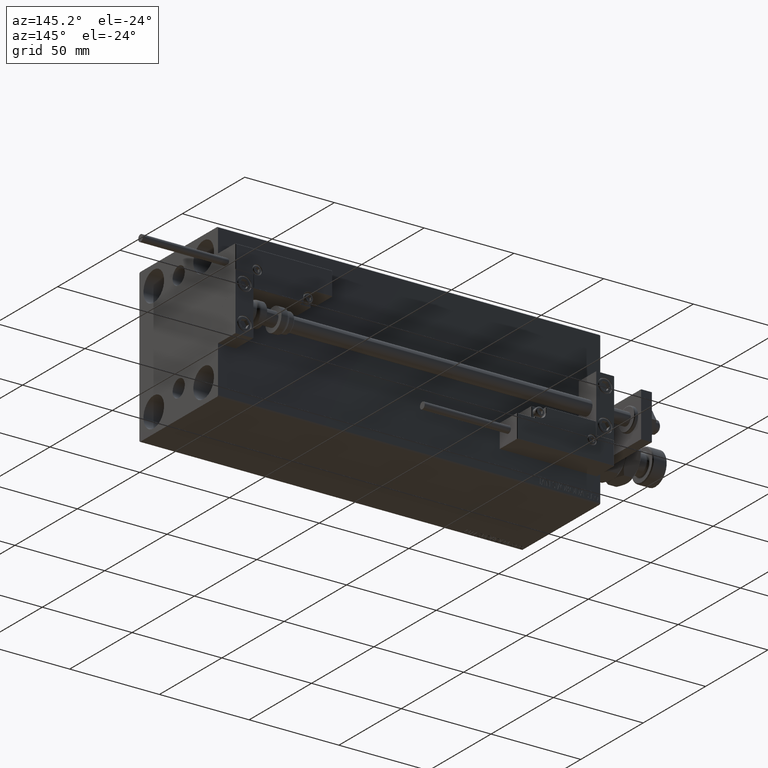
[diagram: clean part render]
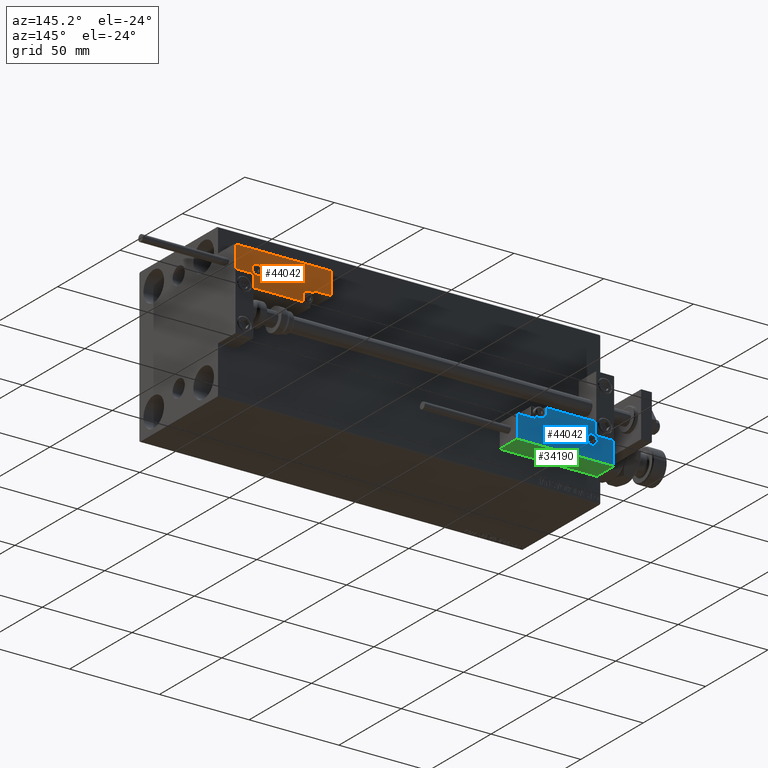
[diagram: same view with three faces highlighted in distinct colors, each labeled with its STEP entity id]
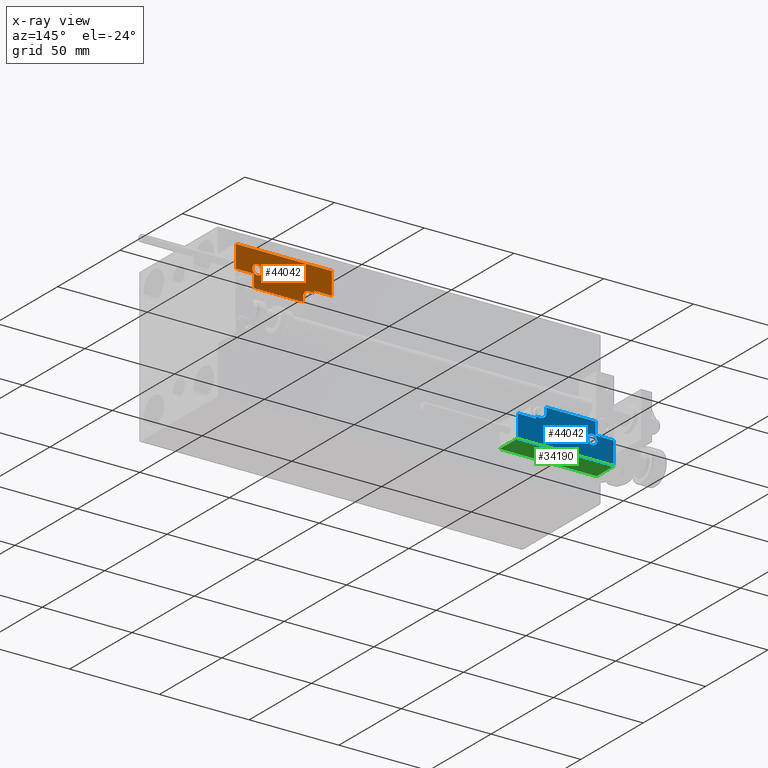
[diagram: x-ray of the same camera — body ghosted, the three highlighted faces saturated]
A machine part, auxiliary view with three faces highlighted in distinct colors.
The next image is the same camera in x-ray (body ghosted, the three faces saturated) — at least one of them is partly hidden behind the body in this view.
Their STEP definitions:

[orange] entity #44042 — the highlighted planar face has unit normal (0, 1, -0).
#146 = CARTESIAN_POINT ( 'NONE',  ( -16.69999999999999218, 3.252606517456513302E-15, 14.00000000000000000 ) ) ;
#300 = LINE ( 'NONE', #48426, #10548 ) ;
#451 = CARTESIAN_POINT ( 'NONE',  ( 16.69999999999999929, 7.000000000000009770, 14.00000000000000000 ) ) ;
#912 = LINE ( 'NONE', #146, #49469 ) ;
#1470 = LINE ( 'NONE', #21082, #26514 ) ;
#1484 = CARTESIAN_POINT ( 'NONE',  ( 16.69999999999999929, 7.300000000000009592, 14.00000000000000000 ) ) ;
#1702 = VECTOR ( 'NONE', #28228, 1000.000000000000000 ) ;
#2166 = DIRECTION ( 'NONE',  ( 1.000000000000000000, 0.000000000000000000, 0.000000000000000000 ) ) ;
#2460 = VECTOR ( 'NONE', #9930, 1000.000000000000000 ) ;
#2654 = CARTESIAN_POINT ( 'NONE',  ( 16.69999999999999929, 6.300000000000003375, 14.00000000000000000 ) ) ;
#2973 = ORIENTED_EDGE ( 'NONE', *, *, #39315, .T. ) ;
#3233 = EDGE_CURVE ( 'NONE', #30541, #9213, #300, .T. ) ;
#4545 = VERTEX_POINT ( 'NONE', #36314 ) ;
#4653 = VECTOR ( 'NONE', #49059, 1000.000000000000000 ) ;
#4824 = ORIENTED_EDGE ( 'NONE', *, *, #31175, .T. ) ;
#5212 = ORIENTED_EDGE ( 'NONE', *, *, #14546, .T. ) ;
#6417 = CARTESIAN_POINT ( 'NONE',  ( -14.79999999999994920, 9.800000000000004263, 14.00000000000000000 ) ) ;
#7172 = CARTESIAN_POINT ( 'NONE',  ( -26.69999999999994600, 7.000000000000005329, 14.00000000000000000 ) ) ;
#7963 = CARTESIAN_POINT ( 'NONE',  ( -11.99999999999994849, 9.800000000000004263, 14.00000000000000000 ) ) ;
#9213 = VERTEX_POINT ( 'NONE', #14835 ) ;
#9280 = ORIENTED_EDGE ( 'NONE', *, *, #16886, .T. ) ;
#9344 = VERTEX_POINT ( 'NONE', #7963 ) ;
#9841 = CARTESIAN_POINT ( 'NONE',  ( 17.00000000000000000, 6.300000000000003375, 14.00000000000000000 ) ) ;
#9930 = DIRECTION ( 'NONE',  ( -1.000000000000000000, 6.424901762877063495E-17, -0.000000000000000000 ) ) ;
#10063 = VERTEX_POINT ( 'NONE', #25506 ) ;
#10377 = ORIENTED_EDGE ( 'NONE', *, *, #47240, .T. ) ;
#10548 = VECTOR ( 'NONE', #31956, 1000.000000000000000 ) ;
#10726 = EDGE_CURVE ( 'NONE', #33488, #4545, #1470, .T. ) ;
#10832 = DIRECTION ( 'NONE',  ( -8.006416042969869188E-16, -1.000000000000000000, 0.000000000000000000 ) ) ;
#12570 = VERTEX_POINT ( 'NONE', #51456 ) ;
#13837 = CARTESIAN_POINT ( 'NONE',  ( -26.99999999999993605, 19.70000000000002061, 14.00000000000000000 ) ) ;
#14546 = EDGE_CURVE ( 'NONE', #10063, #46631, #49672, .T. ) ;
#14835 = CARTESIAN_POINT ( 'NONE',  ( -16.69999999999999218, 7.300000000000003375, 14.00000000000000000 ) ) ;
#15312 = VERTEX_POINT ( 'NONE', #31241 ) ;
#16466 = CARTESIAN_POINT ( 'NONE',  ( 11.00000000000000000, 0.3000000000000032085, 14.00000000000000000 ) ) ;
#16539 = LINE ( 'NONE', #40324, #41553 ) ;
#16845 = DIRECTION ( 'NONE',  ( 1.000000000000000000, 0.000000000000000000, 0.000000000000000000 ) ) ;
#16886 = EDGE_CURVE ( 'NONE', #12570, #33488, #43419, .T. ) ;
#17618 = DIRECTION ( 'NONE',  ( 0.000000000000000000, -0.000000000000000000, -1.000000000000000000 ) ) ;
#17958 = ORIENTED_EDGE ( 'NONE', *, *, #47411, .T. ) ;
#18957 = AXIS2_PLACEMENT_3D ( 'NONE', #36980, #17618, #16845 ) ;
#19099 = ORIENTED_EDGE ( 'NONE', *, *, #25351, .T. ) ;
#19835 = CARTESIAN_POINT ( 'NONE',  ( 10.69999999999999929, 0.3000000000000032085, 14.00000000000000000 ) ) ;
#20016 = DIRECTION ( 'NONE',  ( 0.000000000000000000, -1.000000000000000000, 0.000000000000000000 ) ) ;
#20070 = DIRECTION ( 'NONE',  ( 9.912705577010318647E-16, 1.000000000000000000, 0.000000000000000000 ) ) ;
#20293 = CARTESIAN_POINT ( 'NONE',  ( 26.70000000000006324, 7.300000000000007816, 14.00000000000000000 ) ) ;
#21082 = CARTESIAN_POINT ( 'NONE',  ( 10.69999999999999929, 3.000000000000003109, 14.00000000000000000 ) ) ;
#22041 = CARTESIAN_POINT ( 'NONE',  ( 0.000000000000000000, 0.000000000000000000, 14.00000000000000000 ) ) ;
#22150 = CIRCLE ( 'NONE', #51407, 2.800000000000000266 ) ;
#22152 = DIRECTION ( 'NONE',  ( 0.000000000000000000, -0.000000000000000000, -1.000000000000000000 ) ) ;
#22410 = VECTOR ( 'NONE', #20070, 1000.000000000000000 ) ;
#24854 = ORIENTED_EDGE ( 'NONE', *, *, #45098, .T. ) ;
#24940 = ORIENTED_EDGE ( 'NONE', *, *, #3233, .T. ) ;
#25019 = LINE ( 'NONE', #451, #22410 ) ;
#25351 = EDGE_CURVE ( 'NONE', #46631, #30541, #34886, .T. ) ;
#25506 = CARTESIAN_POINT ( 'NONE',  ( 26.70000000000006324, 19.70000000000001705, 14.00000000000000000 ) ) ;
#25790 = VERTEX_POINT ( 'NONE', #1484 ) ;
#26489 = FACE_OUTER_BOUND ( 'NONE', #42047, .T. ) ;
#26514 = VECTOR ( 'NONE', #30219, 1000.000000000000000 ) ;
#27642 = ORIENTED_EDGE ( 'NONE', *, *, #38156, .T. ) ;
#28228 = DIRECTION ( 'NONE',  ( 1.000000000000000000, -0.000000000000000000, 0.000000000000000000 ) ) ;
#29888 = FACE_BOUND ( 'NONE', #41660, .T. ) ;
#30155 = VECTOR ( 'NONE', #10832, 1000.000000000000000 ) ;
#30219 = DIRECTION ( 'NONE',  ( -0.000000000000000000, 1.000000000000000000, -0.000000000000000000 ) ) ;
#30258 = AXIS2_PLACEMENT_3D ( 'NONE', #6417, #34905, #50605 ) ;
#30541 = VERTEX_POINT ( 'NONE', #33481 ) ;
#31175 = EDGE_CURVE ( 'NONE', #9213, #12570, #912, .T. ) ;
#31241 = CARTESIAN_POINT ( 'NONE',  ( -17.59999999999994813, 9.800000000000004263, 14.00000000000000000 ) ) ;
#31373 = EDGE_CURVE ( 'NONE', #15312, #9344, #47824, .T. ) ;
#31909 = DIRECTION ( 'NONE',  ( 1.000000000000000000, -1.734723475976796001E-16, 0.000000000000000000 ) ) ;
#31956 = DIRECTION ( 'NONE',  ( 1.000000000000000000, -1.734723475976815230E-16, 0.000000000000000000 ) ) ;
#33481 = CARTESIAN_POINT ( 'NONE',  ( -26.69999999999994600, 7.300000000000005151, 14.00000000000000000 ) ) ;
#33488 = VERTEX_POINT ( 'NONE', #19835 ) ;
#33681 = CARTESIAN_POINT ( 'NONE',  ( -14.79999999999994920, 9.800000000000004263, 14.00000000000000000 ) ) ;
#33769 = VERTEX_POINT ( 'NONE', #20293 ) ;
#34886 = LINE ( 'NONE', #7172, #30155 ) ;
#34905 = DIRECTION ( 'NONE',  ( 0.000000000000000000, -0.000000000000000000, -1.000000000000000000 ) ) ;
#36314 = CARTESIAN_POINT ( 'NONE',  ( 10.69999999999999929, 3.000000000000003109, 14.00000000000000000 ) ) ;
#36411 = DIRECTION ( 'NONE',  ( 0.000000000000000000, 1.000000000000000000, -0.000000000000000000 ) ) ;
#36492 = CIRCLE ( 'NONE', #18957, 3.299999999999997158 ) ;
#36980 = CARTESIAN_POINT ( 'NONE',  ( 13.99999999999999822, 3.000000000000002665, 14.00000000000000000 ) ) ;
#37919 = ORIENTED_EDGE ( 'NONE', *, *, #10726, .T. ) ;
#37987 = DIRECTION ( 'NONE',  ( -0.000000000000000000, 0.000000000000000000, 1.000000000000000000 ) ) ;
#38156 = EDGE_CURVE ( 'NONE', #9344, #15312, #22150, .T. ) ;
#38288 = CARTESIAN_POINT ( 'NONE',  ( 13.99999999999999822, 6.300000000000001599, 14.00000000000000000 ) ) ;
#39238 = CARTESIAN_POINT ( 'NONE',  ( 27.00000000000006395, 7.300000000000007816, 14.00000000000000000 ) ) ;
#39315 = EDGE_CURVE ( 'NONE', #50778, #40555, #41450, .T. ) ;
#40324 = CARTESIAN_POINT ( 'NONE',  ( 26.70000000000006324, 20.00000000000001776, 14.00000000000000000 ) ) ;
#40555 = VERTEX_POINT ( 'NONE', #2654 ) ;
#41450 = LINE ( 'NONE', #9841, #4653 ) ;
#41553 = VECTOR ( 'NONE', #36411, 1000.000000000000000 ) ;
#41660 = EDGE_LOOP ( 'NONE', ( #27642, #50037 ) ) ;
#42047 = EDGE_LOOP ( 'NONE', ( #4824, #9280, #37919, #24854, #2973, #42697, #17958, #10377, #5212, #19099, #24940 ) ) ;
#42697 = ORIENTED_EDGE ( 'NONE', *, *, #48783, .T. ) ;
#43419 = LINE ( 'NONE', #16466, #1702 ) ;
#43924 = CARTESIAN_POINT ( 'NONE',  ( -26.69999999999993534, 19.70000000000002061, 14.00000000000000000 ) ) ;
#44042 = ADVANCED_FACE ( 'NONE', ( #29888, #26489 ), #45845, .T. ) ;
#45098 = EDGE_CURVE ( 'NONE', #4545, #50778, #36492, .T. ) ;
#45638 = AXIS2_PLACEMENT_3D ( 'NONE', #22041, #37987, #2166 ) ;
#45845 = PLANE ( 'NONE',  #45638 ) ;
#46631 = VERTEX_POINT ( 'NONE', #43924 ) ;
#47240 = EDGE_CURVE ( 'NONE', #33769, #10063, #16539, .T. ) ;
#47411 = EDGE_CURVE ( 'NONE', #25790, #33769, #51292, .T. ) ;
#47434 = VECTOR ( 'NONE', #31909, 1000.000000000000000 ) ;
#47824 = CIRCLE ( 'NONE', #30258, 2.800000000000000266 ) ;
#48426 = CARTESIAN_POINT ( 'NONE',  ( -16.99999999999999289, 7.300000000000003375, 14.00000000000000000 ) ) ;
#48783 = EDGE_CURVE ( 'NONE', #40555, #25790, #25019, .T. ) ;
#49059 = DIRECTION ( 'NONE',  ( 1.000000000000000000, 5.782411586589357639E-16, -0.000000000000000000 ) ) ;
#49113 = DIRECTION ( 'NONE',  ( 1.000000000000000000, 0.000000000000000000, 0.000000000000000000 ) ) ;
#49469 = VECTOR ( 'NONE', #20016, 1000.000000000000000 ) ;
#49672 = LINE ( 'NONE', #13837, #2460 ) ;
#50037 = ORIENTED_EDGE ( 'NONE', *, *, #31373, .T. ) ;
#50605 = DIRECTION ( 'NONE',  ( 1.000000000000000000, 0.000000000000000000, 0.000000000000000000 ) ) ;
#50778 = VERTEX_POINT ( 'NONE', #38288 ) ;
#51292 = LINE ( 'NONE', #39238, #47434 ) ;
#51407 = AXIS2_PLACEMENT_3D ( 'NONE', #33681, #22152, #49113 ) ;
#51456 = CARTESIAN_POINT ( 'NONE',  ( -16.69999999999999218, 0.3000000000000032085, 14.00000000000000000 ) ) ;

[blue] entity #44042 — the highlighted planar face has unit normal (-0, 1, -0).
#146 = CARTESIAN_POINT ( 'NONE',  ( -16.69999999999999218, 3.252606517456513302E-15, 14.00000000000000000 ) ) ;
#300 = LINE ( 'NONE', #48426, #10548 ) ;
#451 = CARTESIAN_POINT ( 'NONE',  ( 16.69999999999999929, 7.000000000000009770, 14.00000000000000000 ) ) ;
#912 = LINE ( 'NONE', #146, #49469 ) ;
#1470 = LINE ( 'NONE', #21082, #26514 ) ;
#1484 = CARTESIAN_POINT ( 'NONE',  ( 16.69999999999999929, 7.300000000000009592, 14.00000000000000000 ) ) ;
#1702 = VECTOR ( 'NONE', #28228, 1000.000000000000000 ) ;
#2166 = DIRECTION ( 'NONE',  ( 1.000000000000000000, 0.000000000000000000, 0.000000000000000000 ) ) ;
#2460 = VECTOR ( 'NONE', #9930, 1000.000000000000000 ) ;
#2654 = CARTESIAN_POINT ( 'NONE',  ( 16.69999999999999929, 6.300000000000003375, 14.00000000000000000 ) ) ;
#2973 = ORIENTED_EDGE ( 'NONE', *, *, #39315, .T. ) ;
#3233 = EDGE_CURVE ( 'NONE', #30541, #9213, #300, .T. ) ;
#4545 = VERTEX_POINT ( 'NONE', #36314 ) ;
#4653 = VECTOR ( 'NONE', #49059, 1000.000000000000000 ) ;
#4824 = ORIENTED_EDGE ( 'NONE', *, *, #31175, .T. ) ;
#5212 = ORIENTED_EDGE ( 'NONE', *, *, #14546, .T. ) ;
#6417 = CARTESIAN_POINT ( 'NONE',  ( -14.79999999999994920, 9.800000000000004263, 14.00000000000000000 ) ) ;
#7172 = CARTESIAN_POINT ( 'NONE',  ( -26.69999999999994600, 7.000000000000005329, 14.00000000000000000 ) ) ;
#7963 = CARTESIAN_POINT ( 'NONE',  ( -11.99999999999994849, 9.800000000000004263, 14.00000000000000000 ) ) ;
#9213 = VERTEX_POINT ( 'NONE', #14835 ) ;
#9280 = ORIENTED_EDGE ( 'NONE', *, *, #16886, .T. ) ;
#9344 = VERTEX_POINT ( 'NONE', #7963 ) ;
#9841 = CARTESIAN_POINT ( 'NONE',  ( 17.00000000000000000, 6.300000000000003375, 14.00000000000000000 ) ) ;
#9930 = DIRECTION ( 'NONE',  ( -1.000000000000000000, 6.424901762877063495E-17, -0.000000000000000000 ) ) ;
#10063 = VERTEX_POINT ( 'NONE', #25506 ) ;
#10377 = ORIENTED_EDGE ( 'NONE', *, *, #47240, .T. ) ;
#10548 = VECTOR ( 'NONE', #31956, 1000.000000000000000 ) ;
#10726 = EDGE_CURVE ( 'NONE', #33488, #4545, #1470, .T. ) ;
#10832 = DIRECTION ( 'NONE',  ( -8.006416042969869188E-16, -1.000000000000000000, 0.000000000000000000 ) ) ;
#12570 = VERTEX_POINT ( 'NONE', #51456 ) ;
#13837 = CARTESIAN_POINT ( 'NONE',  ( -26.99999999999993605, 19.70000000000002061, 14.00000000000000000 ) ) ;
#14546 = EDGE_CURVE ( 'NONE', #10063, #46631, #49672, .T. ) ;
#14835 = CARTESIAN_POINT ( 'NONE',  ( -16.69999999999999218, 7.300000000000003375, 14.00000000000000000 ) ) ;
#15312 = VERTEX_POINT ( 'NONE', #31241 ) ;
#16466 = CARTESIAN_POINT ( 'NONE',  ( 11.00000000000000000, 0.3000000000000032085, 14.00000000000000000 ) ) ;
#16539 = LINE ( 'NONE', #40324, #41553 ) ;
#16845 = DIRECTION ( 'NONE',  ( 1.000000000000000000, 0.000000000000000000, 0.000000000000000000 ) ) ;
#16886 = EDGE_CURVE ( 'NONE', #12570, #33488, #43419, .T. ) ;
#17618 = DIRECTION ( 'NONE',  ( 0.000000000000000000, -0.000000000000000000, -1.000000000000000000 ) ) ;
#17958 = ORIENTED_EDGE ( 'NONE', *, *, #47411, .T. ) ;
#18957 = AXIS2_PLACEMENT_3D ( 'NONE', #36980, #17618, #16845 ) ;
#19099 = ORIENTED_EDGE ( 'NONE', *, *, #25351, .T. ) ;
#19835 = CARTESIAN_POINT ( 'NONE',  ( 10.69999999999999929, 0.3000000000000032085, 14.00000000000000000 ) ) ;
#20016 = DIRECTION ( 'NONE',  ( 0.000000000000000000, -1.000000000000000000, 0.000000000000000000 ) ) ;
#20070 = DIRECTION ( 'NONE',  ( 9.912705577010318647E-16, 1.000000000000000000, 0.000000000000000000 ) ) ;
#20293 = CARTESIAN_POINT ( 'NONE',  ( 26.70000000000006324, 7.300000000000007816, 14.00000000000000000 ) ) ;
#21082 = CARTESIAN_POINT ( 'NONE',  ( 10.69999999999999929, 3.000000000000003109, 14.00000000000000000 ) ) ;
#22041 = CARTESIAN_POINT ( 'NONE',  ( 0.000000000000000000, 0.000000000000000000, 14.00000000000000000 ) ) ;
#22150 = CIRCLE ( 'NONE', #51407, 2.800000000000000266 ) ;
#22152 = DIRECTION ( 'NONE',  ( 0.000000000000000000, -0.000000000000000000, -1.000000000000000000 ) ) ;
#22410 = VECTOR ( 'NONE', #20070, 1000.000000000000000 ) ;
#24854 = ORIENTED_EDGE ( 'NONE', *, *, #45098, .T. ) ;
#24940 = ORIENTED_EDGE ( 'NONE', *, *, #3233, .T. ) ;
#25019 = LINE ( 'NONE', #451, #22410 ) ;
#25351 = EDGE_CURVE ( 'NONE', #46631, #30541, #34886, .T. ) ;
#25506 = CARTESIAN_POINT ( 'NONE',  ( 26.70000000000006324, 19.70000000000001705, 14.00000000000000000 ) ) ;
#25790 = VERTEX_POINT ( 'NONE', #1484 ) ;
#26489 = FACE_OUTER_BOUND ( 'NONE', #42047, .T. ) ;
#26514 = VECTOR ( 'NONE', #30219, 1000.000000000000000 ) ;
#27642 = ORIENTED_EDGE ( 'NONE', *, *, #38156, .T. ) ;
#28228 = DIRECTION ( 'NONE',  ( 1.000000000000000000, -0.000000000000000000, 0.000000000000000000 ) ) ;
#29888 = FACE_BOUND ( 'NONE', #41660, .T. ) ;
#30155 = VECTOR ( 'NONE', #10832, 1000.000000000000000 ) ;
#30219 = DIRECTION ( 'NONE',  ( -0.000000000000000000, 1.000000000000000000, -0.000000000000000000 ) ) ;
#30258 = AXIS2_PLACEMENT_3D ( 'NONE', #6417, #34905, #50605 ) ;
#30541 = VERTEX_POINT ( 'NONE', #33481 ) ;
#31175 = EDGE_CURVE ( 'NONE', #9213, #12570, #912, .T. ) ;
#31241 = CARTESIAN_POINT ( 'NONE',  ( -17.59999999999994813, 9.800000000000004263, 14.00000000000000000 ) ) ;
#31373 = EDGE_CURVE ( 'NONE', #15312, #9344, #47824, .T. ) ;
#31909 = DIRECTION ( 'NONE',  ( 1.000000000000000000, -1.734723475976796001E-16, 0.000000000000000000 ) ) ;
#31956 = DIRECTION ( 'NONE',  ( 1.000000000000000000, -1.734723475976815230E-16, 0.000000000000000000 ) ) ;
#33481 = CARTESIAN_POINT ( 'NONE',  ( -26.69999999999994600, 7.300000000000005151, 14.00000000000000000 ) ) ;
#33488 = VERTEX_POINT ( 'NONE', #19835 ) ;
#33681 = CARTESIAN_POINT ( 'NONE',  ( -14.79999999999994920, 9.800000000000004263, 14.00000000000000000 ) ) ;
#33769 = VERTEX_POINT ( 'NONE', #20293 ) ;
#34886 = LINE ( 'NONE', #7172, #30155 ) ;
#34905 = DIRECTION ( 'NONE',  ( 0.000000000000000000, -0.000000000000000000, -1.000000000000000000 ) ) ;
#36314 = CARTESIAN_POINT ( 'NONE',  ( 10.69999999999999929, 3.000000000000003109, 14.00000000000000000 ) ) ;
#36411 = DIRECTION ( 'NONE',  ( 0.000000000000000000, 1.000000000000000000, -0.000000000000000000 ) ) ;
#36492 = CIRCLE ( 'NONE', #18957, 3.299999999999997158 ) ;
#36980 = CARTESIAN_POINT ( 'NONE',  ( 13.99999999999999822, 3.000000000000002665, 14.00000000000000000 ) ) ;
#37919 = ORIENTED_EDGE ( 'NONE', *, *, #10726, .T. ) ;
#37987 = DIRECTION ( 'NONE',  ( -0.000000000000000000, 0.000000000000000000, 1.000000000000000000 ) ) ;
#38156 = EDGE_CURVE ( 'NONE', #9344, #15312, #22150, .T. ) ;
#38288 = CARTESIAN_POINT ( 'NONE',  ( 13.99999999999999822, 6.300000000000001599, 14.00000000000000000 ) ) ;
#39238 = CARTESIAN_POINT ( 'NONE',  ( 27.00000000000006395, 7.300000000000007816, 14.00000000000000000 ) ) ;
#39315 = EDGE_CURVE ( 'NONE', #50778, #40555, #41450, .T. ) ;
#40324 = CARTESIAN_POINT ( 'NONE',  ( 26.70000000000006324, 20.00000000000001776, 14.00000000000000000 ) ) ;
#40555 = VERTEX_POINT ( 'NONE', #2654 ) ;
#41450 = LINE ( 'NONE', #9841, #4653 ) ;
#41553 = VECTOR ( 'NONE', #36411, 1000.000000000000000 ) ;
#41660 = EDGE_LOOP ( 'NONE', ( #27642, #50037 ) ) ;
#42047 = EDGE_LOOP ( 'NONE', ( #4824, #9280, #37919, #24854, #2973, #42697, #17958, #10377, #5212, #19099, #24940 ) ) ;
#42697 = ORIENTED_EDGE ( 'NONE', *, *, #48783, .T. ) ;
#43419 = LINE ( 'NONE', #16466, #1702 ) ;
#43924 = CARTESIAN_POINT ( 'NONE',  ( -26.69999999999993534, 19.70000000000002061, 14.00000000000000000 ) ) ;
#44042 = ADVANCED_FACE ( 'NONE', ( #29888, #26489 ), #45845, .T. ) ;
#45098 = EDGE_CURVE ( 'NONE', #4545, #50778, #36492, .T. ) ;
#45638 = AXIS2_PLACEMENT_3D ( 'NONE', #22041, #37987, #2166 ) ;
#45845 = PLANE ( 'NONE',  #45638 ) ;
#46631 = VERTEX_POINT ( 'NONE', #43924 ) ;
#47240 = EDGE_CURVE ( 'NONE', #33769, #10063, #16539, .T. ) ;
#47411 = EDGE_CURVE ( 'NONE', #25790, #33769, #51292, .T. ) ;
#47434 = VECTOR ( 'NONE', #31909, 1000.000000000000000 ) ;
#47824 = CIRCLE ( 'NONE', #30258, 2.800000000000000266 ) ;
#48426 = CARTESIAN_POINT ( 'NONE',  ( -16.99999999999999289, 7.300000000000003375, 14.00000000000000000 ) ) ;
#48783 = EDGE_CURVE ( 'NONE', #40555, #25790, #25019, .T. ) ;
#49059 = DIRECTION ( 'NONE',  ( 1.000000000000000000, 5.782411586589357639E-16, -0.000000000000000000 ) ) ;
#49113 = DIRECTION ( 'NONE',  ( 1.000000000000000000, 0.000000000000000000, 0.000000000000000000 ) ) ;
#49469 = VECTOR ( 'NONE', #20016, 1000.000000000000000 ) ;
#49672 = LINE ( 'NONE', #13837, #2460 ) ;
#50037 = ORIENTED_EDGE ( 'NONE', *, *, #31373, .T. ) ;
#50605 = DIRECTION ( 'NONE',  ( 1.000000000000000000, 0.000000000000000000, 0.000000000000000000 ) ) ;
#50778 = VERTEX_POINT ( 'NONE', #38288 ) ;
#51292 = LINE ( 'NONE', #39238, #47434 ) ;
#51407 = AXIS2_PLACEMENT_3D ( 'NONE', #33681, #22152, #49113 ) ;
#51456 = CARTESIAN_POINT ( 'NONE',  ( -16.69999999999999218, 0.3000000000000032085, 14.00000000000000000 ) ) ;

[green] entity #34190 — the highlighted planar face has unit normal (0, 0, 1).
#280 = ORIENTED_EDGE ( 'NONE', *, *, #36780, .T. ) ;
#3518 = CARTESIAN_POINT ( 'NONE',  ( -26.99999999999993605, 20.00000000000002132, 13.70000000000000107 ) ) ;
#4552 = EDGE_CURVE ( 'NONE', #31358, #20951, #20356, .T. ) ;
#5542 = VECTOR ( 'NONE', #39462, 1000.000000000000000 ) ;
#7073 = DIRECTION ( 'NONE',  ( -0.000000000000000000, -0.000000000000000000, -1.000000000000000000 ) ) ;
#7252 = VECTOR ( 'NONE', #16739, 1000.000000000000000 ) ;
#7280 = VECTOR ( 'NONE', #11205, 1000.000000000000000 ) ;
#8906 = CARTESIAN_POINT ( 'NONE',  ( 27.00000000000006395, 20.00000000000001776, 13.70000000000000107 ) ) ;
#9455 = CARTESIAN_POINT ( 'NONE',  ( 27.00000000000006395, 20.00000000000001776, 14.00000000000000000 ) ) ;
#11205 = DIRECTION ( 'NONE',  ( -1.000000000000000000, 6.424901762877062263E-17, 0.000000000000000000 ) ) ;
#12523 = VERTEX_POINT ( 'NONE', #17998 ) ;
#14748 = ORIENTED_EDGE ( 'NONE', *, *, #4552, .F. ) ;
#15611 = VERTEX_POINT ( 'NONE', #23330 ) ;
#16739 = DIRECTION ( 'NONE',  ( 1.000000000000000000, -6.424901762877063495E-17, -0.000000000000000000 ) ) ;
#17998 = CARTESIAN_POINT ( 'NONE',  ( 27.00000000000006395, 20.00000000000001776, 13.70000000000000107 ) ) ;
#18057 = PLANE ( 'NONE',  #22016 ) ;
#20356 = LINE ( 'NONE', #28458, #5542 ) ;
#20951 = VERTEX_POINT ( 'NONE', #26213 ) ;
#22016 = AXIS2_PLACEMENT_3D ( 'NONE', #9455, #30071, #29559 ) ;
#23330 = CARTESIAN_POINT ( 'NONE',  ( 27.00000000000006395, 20.00000000000001776, 0.000000000000000000 ) ) ;
#26213 = CARTESIAN_POINT ( 'NONE',  ( -26.99999999999993605, 20.00000000000002132, 0.000000000000000000 ) ) ;
#28458 = CARTESIAN_POINT ( 'NONE',  ( -26.99999999999993605, 20.00000000000002132, 14.00000000000000000 ) ) ;
#28503 = LINE ( 'NONE', #8906, #7252 ) ;
#29121 = ORIENTED_EDGE ( 'NONE', *, *, #40670, .T. ) ;
#29559 = DIRECTION ( 'NONE',  ( 1.000000000000000000, -6.424901762877063495E-17, 0.000000000000000000 ) ) ;
#30071 = DIRECTION ( 'NONE',  ( -6.424901762877063495E-17, -1.000000000000000000, 0.000000000000000000 ) ) ;
#31358 = VERTEX_POINT ( 'NONE', #3518 ) ;
#33758 = FACE_OUTER_BOUND ( 'NONE', #44473, .T. ) ;
#34190 = ADVANCED_FACE ( 'NONE', ( #33758 ), #18057, .F. ) ;
#34647 = VECTOR ( 'NONE', #7073, 1000.000000000000000 ) ;
#35038 = LINE ( 'NONE', #37203, #34647 ) ;
#35261 = CARTESIAN_POINT ( 'NONE',  ( 27.00000000000006395, 20.00000000000001776, 0.000000000000000000 ) ) ;
#36780 = EDGE_CURVE ( 'NONE', #12523, #15611, #35038, .T. ) ;
#37203 = CARTESIAN_POINT ( 'NONE',  ( 27.00000000000006395, 20.00000000000001776, 14.00000000000000000 ) ) ;
#39462 = DIRECTION ( 'NONE',  ( -0.000000000000000000, -0.000000000000000000, -1.000000000000000000 ) ) ;
#40670 = EDGE_CURVE ( 'NONE', #31358, #12523, #28503, .T. ) ;
#43610 = LINE ( 'NONE', #35261, #7280 ) ;
#44473 = EDGE_LOOP ( 'NONE', ( #14748, #29121, #280, #48604 ) ) ;
#45693 = EDGE_CURVE ( 'NONE', #15611, #20951, #43610, .T. ) ;
#48604 = ORIENTED_EDGE ( 'NONE', *, *, #45693, .T. ) ;